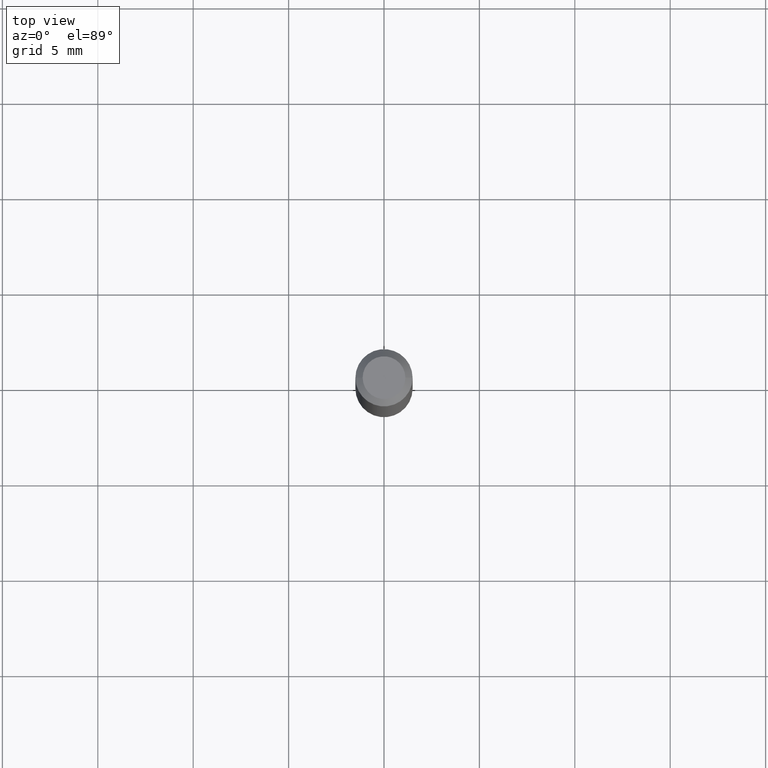
[diagram: clean part render]
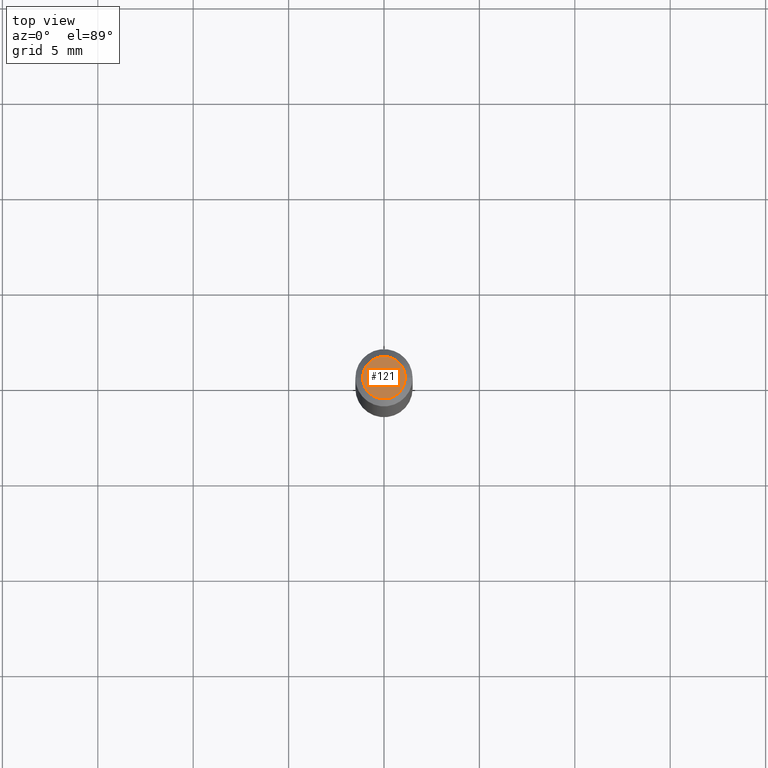
[diagram: same view with one face highlighted and labeled with its STEP entity id]
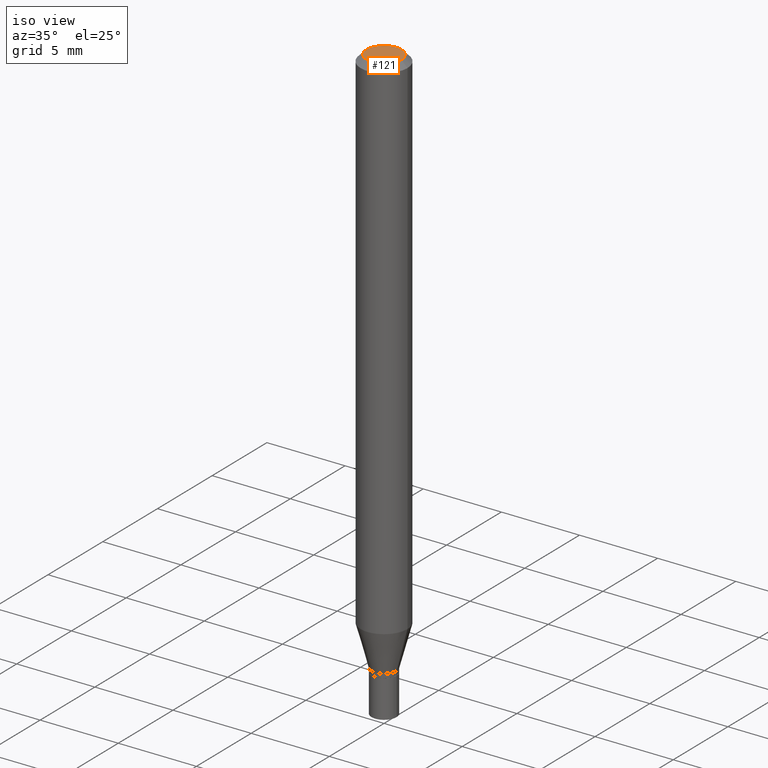
[diagram: same view with one face highlighted and labeled with its STEP entity id]
A machine part, top view. The second image highlights one B-rep face of the part: STEP entity #121.
A second angle (iso view) of the same face is appended — the face is thin or edge-on in the first view.
In plain terms, the highlighted planar face has unit normal (0, -0, -1).
Its self-contained STEP definition (entity closure, byte-faithful):
#24 = VERTEX_POINT ( 'NONE', #461 ) ;
#71 = CARTESIAN_POINT ( 'NONE',  ( -0.04404999999999999888, 3.337856159934039069E-16, 2.531384086379445251E-16 ) ) ;
#84 = CARTESIAN_POINT ( 'NONE',  ( -6.190420819714450177E-45, 8.838280299038417497E-31, 2.531384086379467931E-16 ) ) ;
#104 = AXIS2_PLACEMENT_3D ( 'NONE', #84, #236, #449 ) ;
#121 = ADVANCED_FACE ( 'NONE', ( #426 ), #386, .F. ) ;
#127 = DIRECTION ( 'NONE',  ( -1.000000000000000000, 6.982962677686265922E-15, -4.876176775795935793E-29 ) ) ;
#128 = DIRECTION ( 'NONE',  ( -2.445468806185136597E-29, 3.491481338843145583E-15, 1.000000000000000000 ) ) ;
#152 = EDGE_LOOP ( 'NONE', ( #376, #195 ) ) ;
#167 = VERTEX_POINT ( 'NONE', #71 ) ;
#184 = DIRECTION ( 'NONE',  ( 1.000000000000000000, -6.982962677686265922E-15, 4.888540261209747396E-29 ) ) ;
#195 = ORIENTED_EDGE ( 'NONE', *, *, #411, .T. ) ;
#236 = DIRECTION ( 'NONE',  ( -2.445468806185136597E-29, 3.491481338843145583E-15, 1.000000000000000000 ) ) ;
#256 = CIRCLE ( 'NONE', #462, 0.04404999999999999888 ) ;
#324 = CARTESIAN_POINT ( 'NONE',  ( 3.075995059520799729E-16, 0.04404999999999999888, -2.723054865706716614E-17 ) ) ;
#373 = CIRCLE ( 'NONE', #104, 0.04404999999999999888 ) ;
#376 = ORIENTED_EDGE ( 'NONE', *, *, #408, .T. ) ;
#380 = DIRECTION ( 'NONE',  ( 2.438088387897960049E-29, -3.491481338843145188E-15, -1.000000000000000000 ) ) ;
#386 = PLANE ( 'NONE',  #404 ) ;
#404 = AXIS2_PLACEMENT_3D ( 'NONE', #324, #380, #127 ) ;
#408 = EDGE_CURVE ( 'NONE', #167, #24, #373, .T. ) ;
#411 = EDGE_CURVE ( 'NONE', #24, #167, #256, .T. ) ;
#426 = FACE_OUTER_BOUND ( 'NONE', #152, .T. ) ;
#449 = DIRECTION ( 'NONE',  ( 1.000000000000000000, -6.982962677686265922E-15, 4.888540261209747396E-29 ) ) ;
#452 = CARTESIAN_POINT ( 'NONE',  ( -6.190420819714450177E-45, 8.838280299038417497E-31, 2.531384086379467931E-16 ) ) ;
#461 = CARTESIAN_POINT ( 'NONE',  ( 0.04404999999999999888, -3.798447818264456135E-16, 2.531384086379491597E-16 ) ) ;
#462 = AXIS2_PLACEMENT_3D ( 'NONE', #452, #128, #184 ) ;